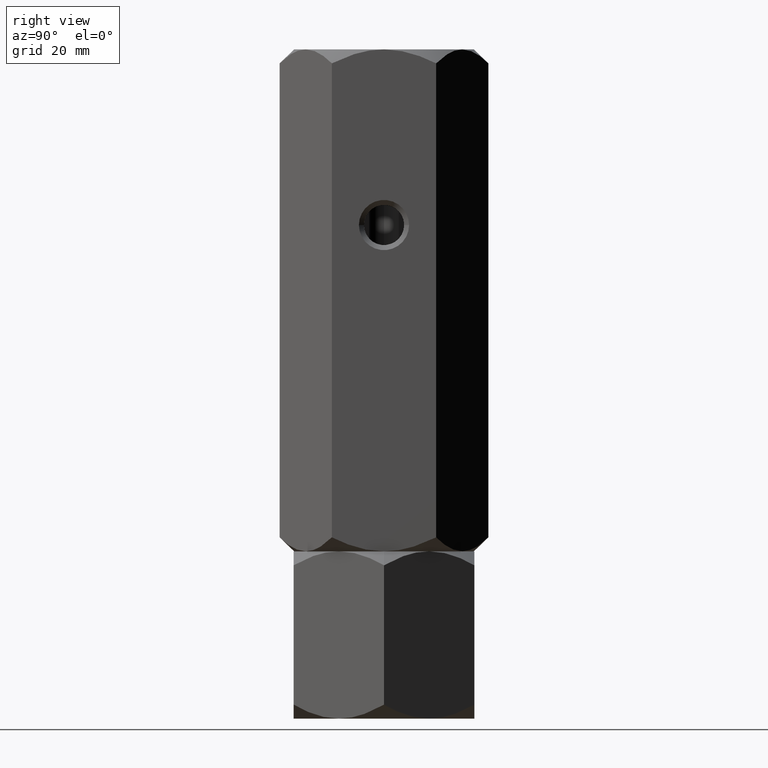
[diagram: clean part render]
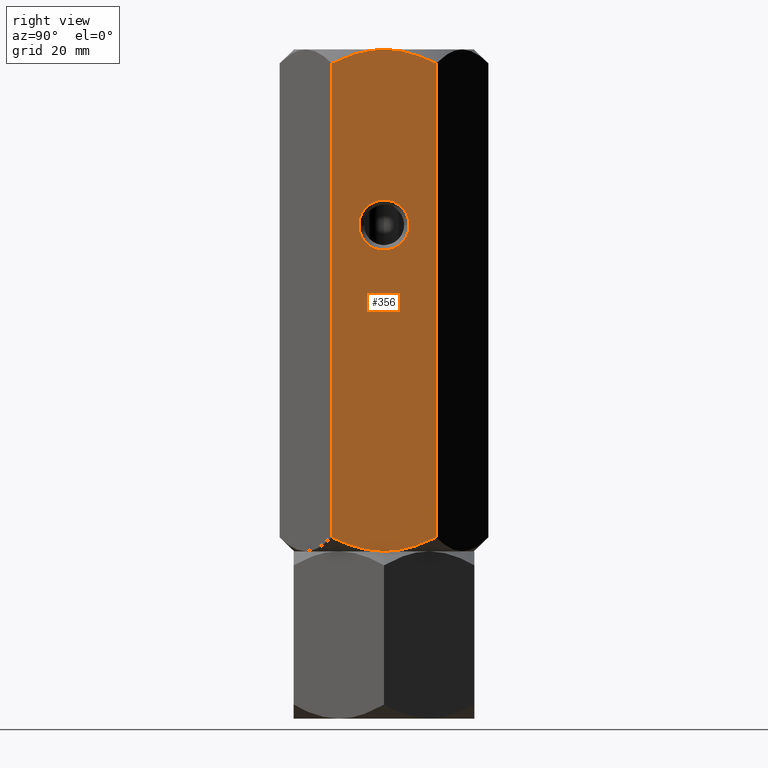
[diagram: same view with one face highlighted and labeled with its STEP entity id]
A machine part, right view. The second image highlights one B-rep face of the part: STEP entity #356.
In plain terms, the highlighted planar face has unit normal (-1, -0, 0).
Its self-contained STEP definition (entity closure, byte-faithful):
#7 = AXIS2_PLACEMENT_3D ( 'NONE', #1971, #1209, #1814 ) ;
#20 = CARTESIAN_POINT ( 'NONE',  ( 18.00000000000000355, -10.39230484541326938, 36.11794302415982116 ) ) ;
#66 = VECTOR ( 'NONE', #655, 1000.000000000000000 ) ;
#79 = CARTESIAN_POINT ( 'NONE',  ( 18.00000000000000355, 7.082707117959931686, 34.66128091149799673 ) ) ;
#97 = CARTESIAN_POINT ( 'NONE',  ( 18.00000000000000355, 9.992749120313220601, 35.91816516160979944 ) ) ;
#107 = CARTESIAN_POINT ( 'NONE',  ( 18.00000000000000355, -8.774731520318150402, 131.3575103050543476 ) ) ;
#111 = CARTESIAN_POINT ( 'NONE',  ( 18.00000000000000355, 2.268326247884227875, 133.1963592391387579 ) ) ;
#124 = EDGE_LOOP ( 'NONE', ( #1198, #993 ) ) ;
#156 = CARTESIAN_POINT ( 'NONE',  ( 18.00000000000000355, -7.107311090567392853, 132.0542086361348879 ) ) ;
#171 = EDGE_CURVE ( 'NONE', #420, #1126, #467, .T. ) ;
#177 = CARTESIAN_POINT ( 'NONE',  ( 18.00000000000000000, 10.39230484541326760, 133.3333333333333144 ) ) ;
#179 = VERTEX_POINT ( 'NONE', #1358 ) ;
#206 = VERTEX_POINT ( 'NONE', #1579 ) ;
#233 = CARTESIAN_POINT ( 'NONE',  ( 18.00000000000000000, 10.39230484541326760, 36.11794302415981406 ) ) ;
#241 = CARTESIAN_POINT ( 'NONE',  ( 18.00000000000000000, -0.9067060642462330122, 133.3333333333333144 ) ) ;
#251 = ORIENTED_EDGE ( 'NONE', *, *, #590, .T. ) ;
#262 = CARTESIAN_POINT ( 'NONE',  ( 18.00000000000000355, -10.39230484541326938, 36.11794302415982116 ) ) ;
#265 = CARTESIAN_POINT ( 'NONE',  ( 17.99999999999999645, 1.817661187389379540, 133.2474680458177829 ) ) ;
#294 = CARTESIAN_POINT ( 'NONE',  ( 18.00000000000000000, 6.223496946123845852, 132.2920538615294106 ) ) ;
#301 = ORIENTED_EDGE ( 'NONE', *, *, #790, .F. ) ;
#315 = VERTEX_POINT ( 'NONE', #262 ) ;
#356 = ADVANCED_FACE ( 'NONE', ( #394, #1040 ), #911, .F. ) ;
#379 = CARTESIAN_POINT ( 'NONE',  ( 18.00000000000000711, 4.494632227792660473, 33.86738326141611566 ) ) ;
#394 = FACE_BOUND ( 'NONE', #124, .T. ) ;
#420 = VERTEX_POINT ( 'NONE', #750 ) ;
#422 = CARTESIAN_POINT ( 'NONE',  ( 18.00000000000000000, 6.228990999673044371, 34.36251136990551203 ) ) ;
#430 = DIRECTION ( 'NONE',  ( 0.000000000000000000, -1.000000000000000000, 0.000000000000000000 ) ) ;
#464 = CARTESIAN_POINT ( 'NONE',  ( 18.00000000000000355, 3.004629197474317668E-15, 33.33333333333330017 ) ) ;
#467 = B_SPLINE_CURVE_WITH_KNOTS ( 'NONE', 3,
 ( #233, #97, #873, #1383, #1227, #79, #422, #379, #557, #1701, #712, #1025, #1658, #851 ),
 .UNSPECIFIED., .F., .F.,
 ( 4, 2, 2, 2, 2, 2, 4 ),
 ( 0.1004087599824664279, 0.1017054273137732168, 0.1030020946450800057, 0.1055954293076935696, 0.1081887639703071335, 0.1094854313016139225, 0.1107820986329207114 ),
 .UNSPECIFIED. ) ;
#476 = CARTESIAN_POINT ( 'NONE',  ( 18.00000000000000355, -8.778074610959542667, 35.31082790693296403 ) ) ;
#557 = CARTESIAN_POINT ( 'NONE',  ( 18.00000000000000000, 3.613967831719439250, 33.67110738872835185 ) ) ;
#569 = AXIS2_PLACEMENT_3D ( 'NONE', #1733, #1429, #1271 ) ;
#590 = EDGE_CURVE ( 'NONE', #1412, #315, #648, .T. ) ;
#616 = CARTESIAN_POINT ( 'NONE',  ( 18.00000000000000000, -5.000000000000000888, 98.33333333333330017 ) ) ;
#619 = CARTESIAN_POINT ( 'NONE',  ( 18.00000000000000355, 7.507490410494529698, 131.8342518833695465 ) ) ;
#634 = CARTESIAN_POINT ( 'NONE',  ( 18.00000000000000711, -3.589319173232463189, 133.0001577798414019 ) ) ;
#641 = CARTESIAN_POINT ( 'NONE',  ( 18.00000000000000355, 8.769604937885729257, 131.3255090817757207 ) ) ;
#648 = LINE ( 'NONE', #1768, #66 ) ;
#655 = DIRECTION ( 'NONE',  ( -0.000000000000000000, -0.000000000000000000, -1.000000000000000000 ) ) ;
#712 = CARTESIAN_POINT ( 'NONE',  ( 18.00000000000000000, 1.814095138421047526, 33.41883099885364317 ) ) ;
#718 = CARTESIAN_POINT ( 'NONE',  ( 18.00000000000000000, 3.004629197474316879E-15, 133.3333333333333144 ) ) ;
#742 = CARTESIAN_POINT ( 'NONE',  ( 18.00000000000000711, 3.609709903701550537, 132.9962641319732768 ) ) ;
#750 = CARTESIAN_POINT ( 'NONE',  ( 18.00000000000000000, 10.39230484541326760, 36.11794302415981406 ) ) ;
#769 = ORIENTED_EDGE ( 'NONE', *, *, #819, .F. ) ;
#775 = CARTESIAN_POINT ( 'NONE',  ( 18.00000000000000355, 10.39230484541326582, 130.5487236425067863 ) ) ;
#789 = EDGE_CURVE ( 'NONE', #1873, #179, #903, .T. ) ;
#790 = EDGE_CURVE ( 'NONE', #1430, #420, #962, .T. ) ;
#811 = DIRECTION ( 'NONE',  ( -0.000000000000000000, -0.000000000000000000, -1.000000000000000000 ) ) ;
#819 = EDGE_CURVE ( 'NONE', #1126, #315, #1219, .T. ) ;
#824 = CARTESIAN_POINT ( 'NONE',  ( 18.00000000000000355, 3.004629197474317668E-15, 33.33333333333330017 ) ) ;
#851 = CARTESIAN_POINT ( 'NONE',  ( 18.00000000000000355, 3.004629197474317668E-15, 33.33333333333330017 ) ) ;
#873 = CARTESIAN_POINT ( 'NONE',  ( 18.00000000000000000, 9.587949197936604051, 35.72437761027131842 ) ) ;
#893 = CARTESIAN_POINT ( 'NONE',  ( 17.99999999999999645, 0.9087126234396294411, 133.3161085293293411 ) ) ;
#903 = CIRCLE ( 'NONE', #569, 5.000000000000004441 ) ;
#911 = PLANE ( 'NONE',  #7 ) ;
#912 = CARTESIAN_POINT ( 'NONE',  ( 18.00000000000000355, -10.39230484541327115, 130.5487236425067863 ) ) ;
#962 = LINE ( 'NONE', #177, #2031 ) ;
#967 = EDGE_CURVE ( 'NONE', #206, #1430, #1734, .T. ) ;
#993 = ORIENTED_EDGE ( 'NONE', *, *, #789, .T. ) ;
#1025 = CARTESIAN_POINT ( 'NONE',  ( 18.00000000000000000, 0.9043953770119622648, 33.35033129737433910 ) ) ;
#1040 = FACE_OUTER_BOUND ( 'NONE', #1978, .T. ) ;
#1055 = CARTESIAN_POINT ( 'NONE',  ( 18.00000000000000000, 3.004629197474316879E-15, 133.3333333333333144 ) ) ;
#1117 = AXIS2_PLACEMENT_3D ( 'NONE', #1277, #1908, #430 ) ;
#1124 = CARTESIAN_POINT ( 'NONE',  ( 18.00000000000000355, -10.39230484541327115, 130.5487236425067863 ) ) ;
#1126 = VERTEX_POINT ( 'NONE', #824 ) ;
#1198 = ORIENTED_EDGE ( 'NONE', *, *, #1422, .T. ) ;
#1209 = DIRECTION ( 'NONE',  ( -1.000000000000000000, -1.669238443041287676E-16, 0.000000000000000000 ) ) ;
#1219 = B_SPLINE_CURVE_WITH_KNOTS ( 'NONE', 3,
 ( #464, #1612, #1458, #1764, #476, #20 ),
 .UNSPECIFIED., .F., .F.,
 ( 4, 2, 4 ),
 ( 0.1107820986329207114, 0.1159835759449454884, 0.1211850532569702515 ),
 .UNSPECIFIED. ) ;
#1227 = CARTESIAN_POINT ( 'NONE',  ( 18.00000000000000000, 8.347141026087369298, 35.17082227915910408 ) ) ;
#1271 = DIRECTION ( 'NONE',  ( 0.000000000000000000, -1.000000000000000000, 0.000000000000000000 ) ) ;
#1277 = CARTESIAN_POINT ( 'NONE',  ( 18.00000000000000000, 3.004629197474317668E-15, 98.33333333333330017 ) ) ;
#1358 = CARTESIAN_POINT ( 'NONE',  ( 18.00000000000000000, 5.000000000000004441, 98.33333333333330017 ) ) ;
#1383 = CARTESIAN_POINT ( 'NONE',  ( 18.00000000000000000, 8.765915541430077340, 35.35100532987971178 ) ) ;
#1393 = CARTESIAN_POINT ( 'NONE',  ( 18.00000000000000355, 5.792286176018575539, 132.4289044973346563 ) ) ;
#1412 = VERTEX_POINT ( 'NONE', #1124 ) ;
#1422 = EDGE_CURVE ( 'NONE', #179, #1873, #1745, .T. ) ;
#1429 = DIRECTION ( 'NONE',  ( -1.000000000000000000, -1.669238443041287676E-16, 0.000000000000000000 ) ) ;
#1430 = VERTEX_POINT ( 'NONE', #1561 ) ;
#1458 = CARTESIAN_POINT ( 'NONE',  ( 18.00000000000000711, -3.592318780390969302, 33.61070979931489688 ) ) ;
#1532 = CARTESIAN_POINT ( 'NONE',  ( 18.00000000000000000, -4.475081985729257639, 132.8044625281006006 ) ) ;
#1553 = ORIENTED_EDGE ( 'NONE', *, *, #171, .F. ) ;
#1561 = CARTESIAN_POINT ( 'NONE',  ( 18.00000000000000355, 10.39230484541326582, 130.5487236425067863 ) ) ;
#1571 = ORIENTED_EDGE ( 'NONE', *, *, #2001, .F. ) ;
#1579 = CARTESIAN_POINT ( 'NONE',  ( 18.00000000000000000, 3.004629197474316879E-15, 133.3333333333333144 ) ) ;
#1612 = CARTESIAN_POINT ( 'NONE',  ( 18.00000000000000355, -1.810443484980117201, 33.33333333333330017 ) ) ;
#1658 = CARTESIAN_POINT ( 'NONE',  ( 18.00000000000000711, 0.4513223419669386560, 33.33333333333329307 ) ) ;
#1674 = CARTESIAN_POINT ( 'NONE',  ( 18.00000000000000711, -1.805664286422178799, 133.2645055555531428 ) ) ;
#1701 = CARTESIAN_POINT ( 'NONE',  ( 18.00000000000000711, 2.268365306453414831, 33.47027849005760913 ) ) ;
#1733 = CARTESIAN_POINT ( 'NONE',  ( 18.00000000000000000, 3.004629197474317668E-15, 98.33333333333330017 ) ) ;
#1734 = B_SPLINE_CURVE_WITH_KNOTS ( 'NONE', 3,
 ( #1055, #1863, #893, #265, #111, #742, #1876, #1393, #294, #1907, #619, #641, #1896, #775 ),
 .UNSPECIFIED., .F., .F.,
 ( 4, 2, 2, 2, 2, 2, 4 ),
 ( 0.1384677957239335566, 0.1397979318438594964, 0.1411280679637854085, 0.1437883402036372604, 0.1451184763235632003, 0.1464486124434891123, 0.1491088846833409920 ),
 .UNSPECIFIED. ) ;
#1745 = CIRCLE ( 'NONE', #1117, 5.000000000000004441 ) ;
#1764 = CARTESIAN_POINT ( 'NONE',  ( 18.00000000000000000, -7.109965447143213879, 34.61309850096017726 ) ) ;
#1765 = ORIENTED_EDGE ( 'NONE', *, *, #967, .F. ) ;
#1768 = CARTESIAN_POINT ( 'NONE',  ( 18.00000000000000355, -10.39230484541326938, 133.3333333333333144 ) ) ;
#1814 = DIRECTION ( 'NONE',  ( 1.669238443041287676E-16, -1.000000000000000000, 0.000000000000000000 ) ) ;
#1863 = CARTESIAN_POINT ( 'NONE',  ( 18.00000000000000000, 0.4526418623711511158, 133.3333333333333144 ) ) ;
#1873 = VERTEX_POINT ( 'NONE', #616 ) ;
#1876 = CARTESIAN_POINT ( 'NONE',  ( 18.00000000000000355, 4.489815314339055341, 132.8005018324903403 ) ) ;
#1896 = CARTESIAN_POINT ( 'NONE',  ( 17.99999999999999645, 9.589039146340004649, 130.9503564920434542 ) ) ;
#1907 = CARTESIAN_POINT ( 'NONE',  ( 18.00000000000000711, 7.080606646322098463, 131.9949414621133030 ) ) ;
#1908 = DIRECTION ( 'NONE',  ( -1.000000000000000000, -1.669238443041287676E-16, 0.000000000000000000 ) ) ;
#1971 = CARTESIAN_POINT ( 'NONE',  ( 18.00000000000000355, -10.39230484541326938, 133.3333333333333144 ) ) ;
#1978 = EDGE_LOOP ( 'NONE', ( #1571, #251, #769, #1553, #301, #1765 ) ) ;
#2001 = EDGE_CURVE ( 'NONE', #1412, #206, #2020, .T. ) ;
#2020 = B_SPLINE_CURVE_WITH_KNOTS ( 'NONE', 3,
 ( #912, #107, #156, #1532, #634, #1674, #241, #718 ),
 .UNSPECIFIED., .F., .F.,
 ( 4, 2, 2, 4 ),
 ( 0.1278099879825815854, 0.1331388918532575849, 0.1358033437885955708, 0.1384677957239335566 ),
 .UNSPECIFIED. ) ;
#2031 = VECTOR ( 'NONE', #811, 1000.000000000000000 ) ;